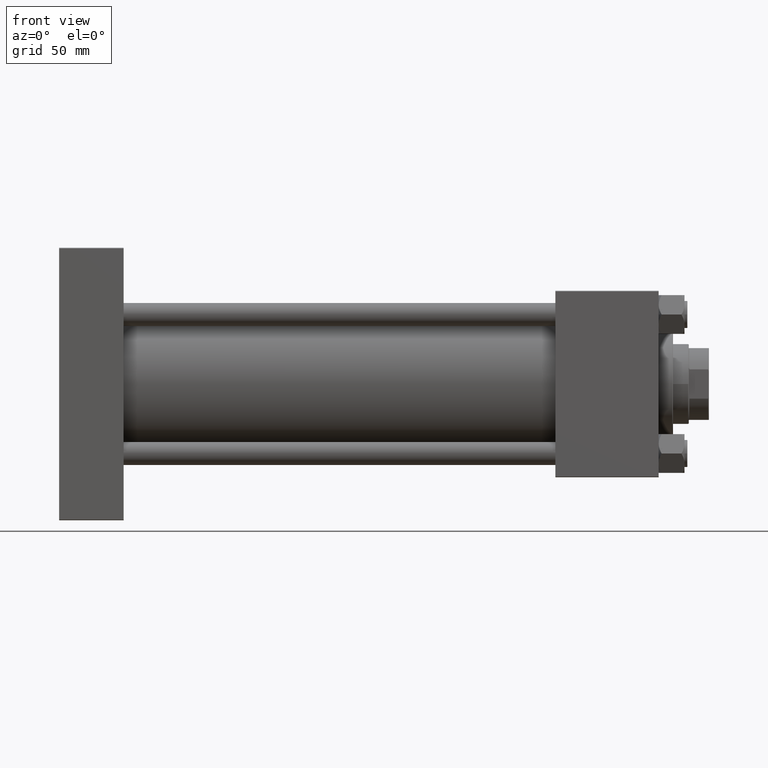
[diagram: clean part render]
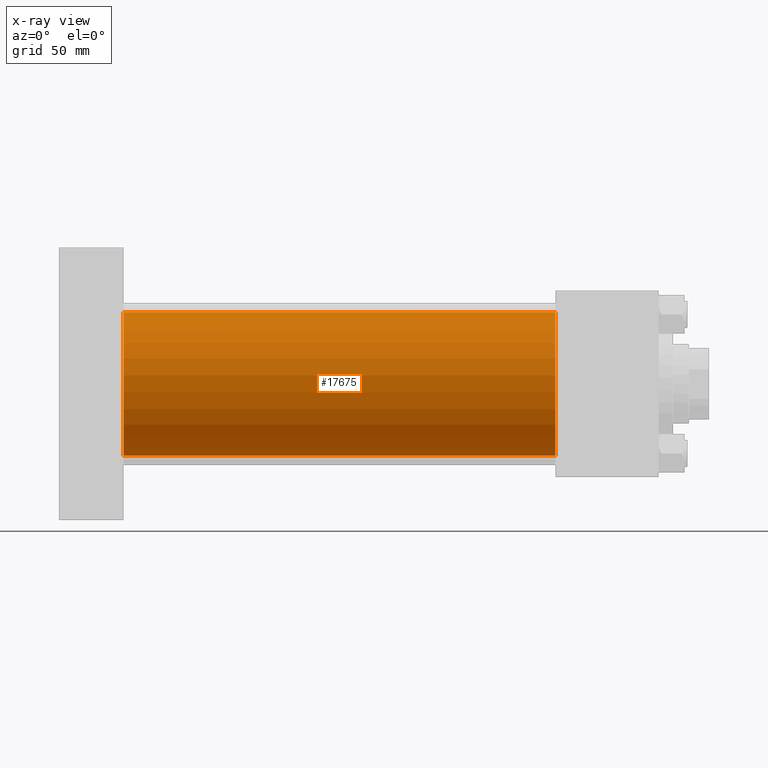
[diagram: x-ray — body ghosted, one internal face saturated and labeled with its STEP entity id]
A machine part, front view, then the same camera in x-ray: the body is ghosted and one INTERNAL B-rep face — a face not visible from any outside direction — is saturated and labeled: STEP entity #17675.
In plain terms, the highlighted cylindrical surface (partial cylindrical patch) has radius 50 mm, axis along (-1, -0, -0).
Its self-contained STEP definition (entity closure, byte-faithful):
#3445 = DIRECTION ( 'NONE',  ( 0.000000000000000000, 0.000000000000000000, -1.000000000000000000 ) ) ;
#4497 = CIRCLE ( 'NONE', #48671, 50.00000000000000000 ) ;
#4570 = CARTESIAN_POINT ( 'NONE',  ( 45.00000000000000000, 3.521148781771555838E-15, -50.00000000000000000 ) ) ;
#5755 = CYLINDRICAL_SURFACE ( 'NONE', #28165, 50.00000000000000000 ) ;
#6151 = CARTESIAN_POINT ( 'NONE',  ( 346.0000000000000000, 3.521148781771555838E-15, -50.00000000000000000 ) ) ;
#6199 = CIRCLE ( 'NONE', #29132, 50.00000000000000000 ) ;
#6875 = VERTEX_POINT ( 'NONE', #4570 ) ;
#7261 = ORIENTED_EDGE ( 'NONE', *, *, #49970, .T. ) ;
#7963 = EDGE_CURVE ( 'NONE', #42717, #6875, #19176, .T. ) ;
#11395 = CARTESIAN_POINT ( 'NONE',  ( 346.0000000000000000, -2.602085213965210642E-15, 0.000000000000000000 ) ) ;
#11508 = ORIENTED_EDGE ( 'NONE', *, *, #14213, .F. ) ;
#11657 = DIRECTION ( 'NONE',  ( 1.000000000000000000, 0.000000000000000000, 0.000000000000000000 ) ) ;
#13532 = DIRECTION ( 'NONE',  ( 1.000000000000000000, 0.000000000000000000, 0.000000000000000000 ) ) ;
#14173 = DIRECTION ( 'NONE',  ( -1.000000000000000000, -0.000000000000000000, -0.000000000000000000 ) ) ;
#14213 = EDGE_CURVE ( 'NONE', #41914, #40557, #18953, .T. ) ;
#17675 = ADVANCED_FACE ( 'NONE', ( #26227 ), #5755, .F. ) ;
#18634 = ORIENTED_EDGE ( 'NONE', *, *, #7963, .T. ) ;
#18953 = LINE ( 'NONE', #42632, #26038 ) ;
#19176 = LINE ( 'NONE', #6151, #43817 ) ;
#19655 = CARTESIAN_POINT ( 'NONE',  ( 346.0000000000000000, 3.521148781771555838E-15, -50.00000000000000000 ) ) ;
#20320 = EDGE_CURVE ( 'NONE', #40557, #6875, #4497, .T. ) ;
#21961 = CARTESIAN_POINT ( 'NONE',  ( 346.0000000000000000, -2.602085213965210642E-15, 0.000000000000000000 ) ) ;
#26038 = VECTOR ( 'NONE', #14173, 1000.000000000000000 ) ;
#26227 = FACE_OUTER_BOUND ( 'NONE', #29882, .T. ) ;
#28094 = CARTESIAN_POINT ( 'NONE',  ( 45.00000000000000000, -2.602085213965210642E-15, 50.00000000000000000 ) ) ;
#28165 = AXIS2_PLACEMENT_3D ( 'NONE', #21961, #30490, #42712 ) ;
#29132 = AXIS2_PLACEMENT_3D ( 'NONE', #11395, #11657, #3445 ) ;
#29882 = EDGE_LOOP ( 'NONE', ( #7261, #18634, #40667, #11508 ) ) ;
#30490 = DIRECTION ( 'NONE',  ( -1.000000000000000000, -0.000000000000000000, -0.000000000000000000 ) ) ;
#34024 = CARTESIAN_POINT ( 'NONE',  ( 45.00000000000000000, -2.602085213965210642E-15, 0.000000000000000000 ) ) ;
#40557 = VERTEX_POINT ( 'NONE', #28094 ) ;
#40667 = ORIENTED_EDGE ( 'NONE', *, *, #20320, .F. ) ;
#40730 = CARTESIAN_POINT ( 'NONE',  ( 346.0000000000000000, -2.602085213965210642E-15, 50.00000000000000000 ) ) ;
#41914 = VERTEX_POINT ( 'NONE', #40730 ) ;
#42632 = CARTESIAN_POINT ( 'NONE',  ( 346.0000000000000000, -2.602085213965210642E-15, 50.00000000000000000 ) ) ;
#42712 = DIRECTION ( 'NONE',  ( 0.000000000000000000, 0.000000000000000000, 1.000000000000000000 ) ) ;
#42717 = VERTEX_POINT ( 'NONE', #19655 ) ;
#43817 = VECTOR ( 'NONE', #47131, 1000.000000000000000 ) ;
#47131 = DIRECTION ( 'NONE',  ( -1.000000000000000000, -0.000000000000000000, -0.000000000000000000 ) ) ;
#48671 = AXIS2_PLACEMENT_3D ( 'NONE', #34024, #13532, #50786 ) ;
#49970 = EDGE_CURVE ( 'NONE', #41914, #42717, #6199, .T. ) ;
#50786 = DIRECTION ( 'NONE',  ( 0.000000000000000000, 0.000000000000000000, -1.000000000000000000 ) ) ;